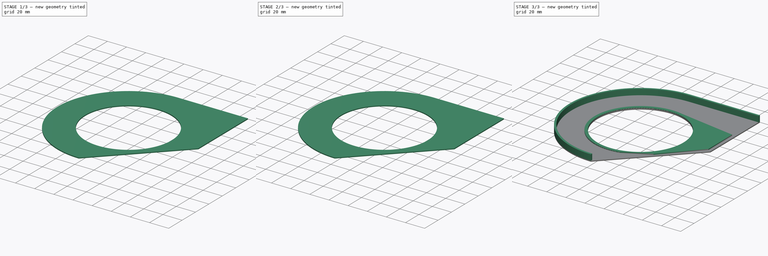
[diagram: build sequence overview — one tinted view per stage of 3, left to right]
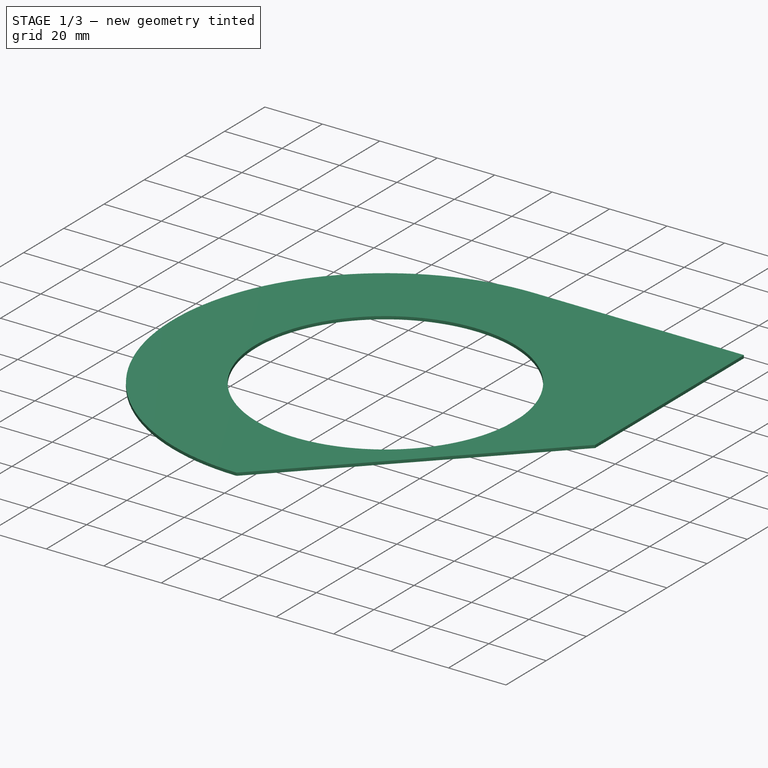
[diagram: stage 1 of 3 — iso view after this stage's code; geometry added in this stage tinted green]
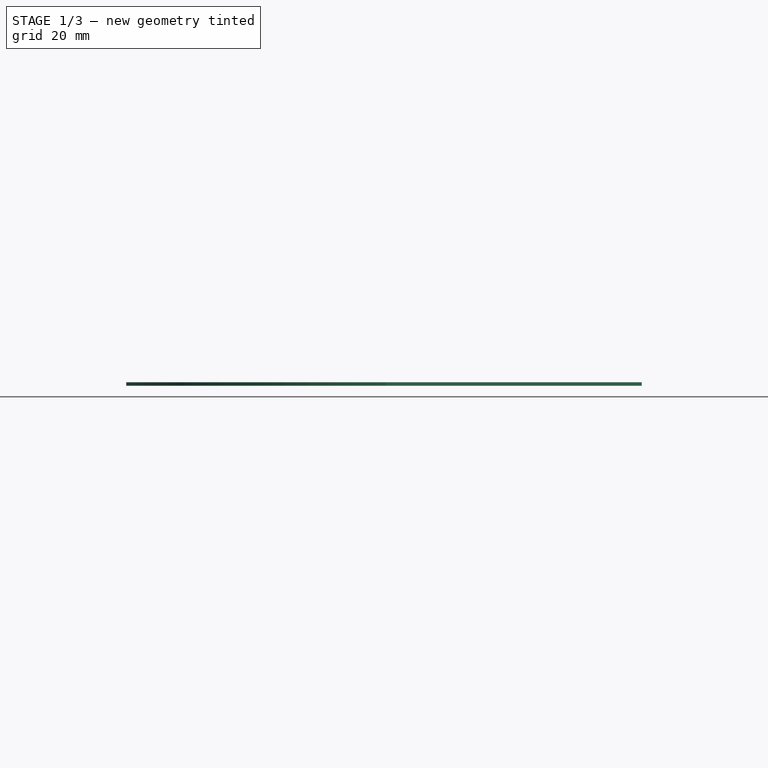
[diagram: stage 1 of 3 — front view after this stage's code; geometry added in this stage tinted green]
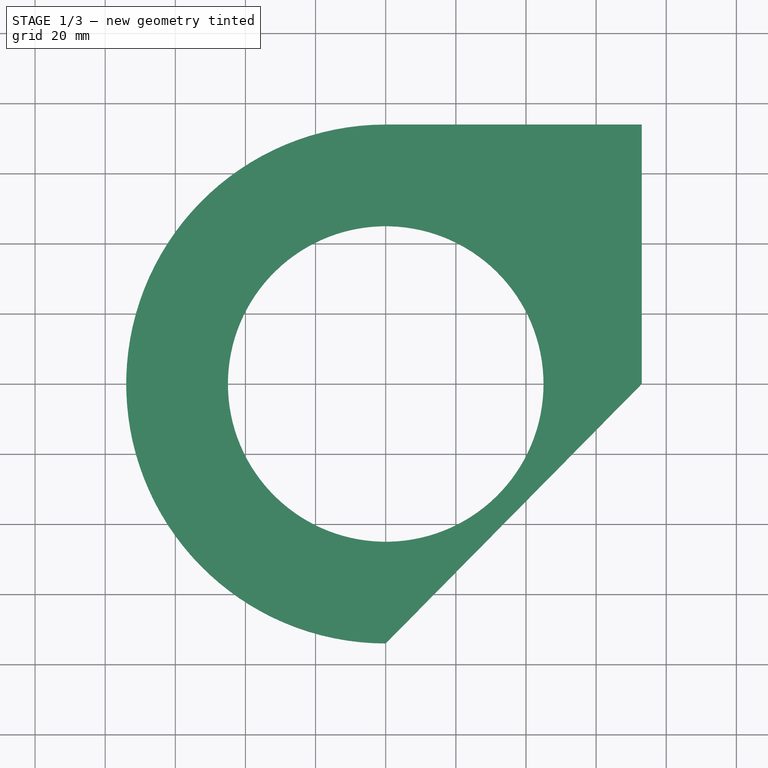
[diagram: stage 1 of 3 — top view after this stage's code; geometry added in this stage tinted green]
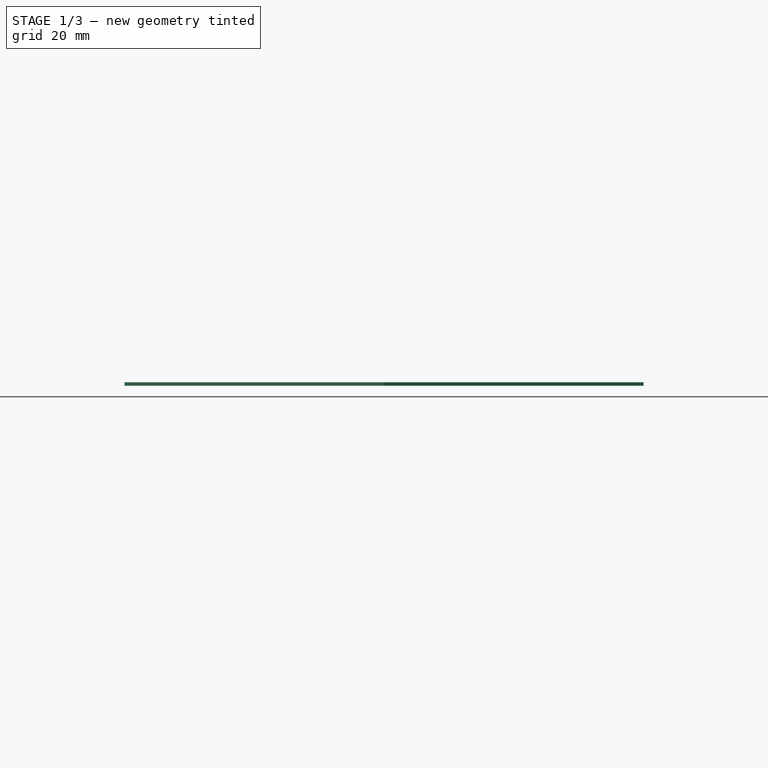
[diagram: stage 1 of 3 — right view after this stage's code; geometry added in this stage tinted green]
FCSTD DOCUMENT  (FreeCAD 0.16R)
Label: chainguard30tV3
License: All rights reserved
LicenseURL: http://en.wikipedia.org/wiki/All_rights_reserved
objects: Sketcher::SketchObject×7, PartDesign::Pad×5, PartDesign::Pocket×2
note: 21 computed .brp shape members not serialized (recipe doc carries the construction recipe); baked Part::Feature solids carry a one-line shape summary decoded from their .brp

FEATURE [Sketcher::SketchObject] Sketch001
  sketch-geometry (5):
    g0: LineSegment StartX=73 StartY=74 StartZ=0 EndX=0 EndY=74 EndZ=0
    g1: LineSegment StartX=73 StartY=0 StartZ=0 EndX=0 EndY=-74 EndZ=0
    g2: ArcOfCircle CenterX=1.64129e-05 CenterY=0 CenterZ=0 NormalX=0 NormalY=0 NormalZ=1 Radius=74 StartAngle=1.5708 EndAngle=4.71239
    g3: Circle CenterX=0 CenterY=0 CenterZ=0 NormalX=0 NormalY=0 NormalZ=1 Radius=45
    g4: LineSegment StartX=73 StartY=74 StartZ=0 EndX=73 EndY=0 EndZ=0
  constraints (15):
    c: Horizontal(g0)
    c: Coincident(g2,g1)
    c: Coincident(g0,g2)
    c: DistanceX(g1,g0) = 0
    c: DistanceY(g1,g0) = 148
    c: Symmetric(g1,g0,g-1)
    c: Radius(g3) = 45
    c: Coincident(g3,g-1)
    c: DistanceX(g0,g0) = 73
    c: Vertical(g4)
    c: DistanceX(g-1,g4) = 73
    c: Radius(g2) = 74
    c: Coincident(g1,g4)
    c: PointOnObject(g1,g-1)
    c: Coincident(g4,g0)
FEATURE [PartDesign::Pad] Pad  label="Faceplate"
  Length = 1
  Length2 = 100
  Reversed = true
  Sketch = -> Sketch001
  Type = 0
FEATURE [Sketcher::SketchObject] Sketch
  Placement = pos=(0,0,-1) rot=(1,0,0;3.14159rad)
  Support = -> Pad [Face7]
  sketch-geometry (5):
    g0: LineSegment [constr] StartX=-4 StartY=2 StartZ=0 EndX=53.3173 EndY=86.9764 EndZ=0
    g1: LineSegment StartX=22.2526 StartY=72.2162 StartZ=0 EndX=64.4703 EndY=72.2162 EndZ=0
    g2: LineSegment StartX=64.4703 StartY=72.2162 StartZ=0 EndX=67.8254 EndY=77.1905 EndZ=0
    g3: LineSegment StartX=67.8254 StartY=77.1905 StartZ=0 EndX=38.8091 EndY=96.7622 EndZ=0
    g4: LineSegment StartX=38.8091 StartY=96.7622 StartZ=0 EndX=22.2526 EndY=72.2162 EndZ=0
  constraints (15):
    c: DistanceY(g-1,g0) = 2
    c: DistanceX(g0,g-1) = 4
    c: Angle(g0) = 0.977384
    c: Distance(g0) = 102.5
    c: Horizontal(g1)
    c: Coincident(g1,g2)
    c: Coincident(g2,g3)
    c: Coincident(g3,g4)
    c: Coincident(g1,g4)
    c: Parallel(g2,g0)
    c: Parallel(g0,g4)
    c: Distance(g2) = 6
    c: Symmetric(g3,g2,g0)
    c: Distance(g3) = 35
    c: PointOnObject(g0,g3)
FEATURE [PartDesign::Pad] Pad003  label="STBoss"
  Length = 31
  Length2 = 1
  Sketch = -> Sketch
  Type = 4
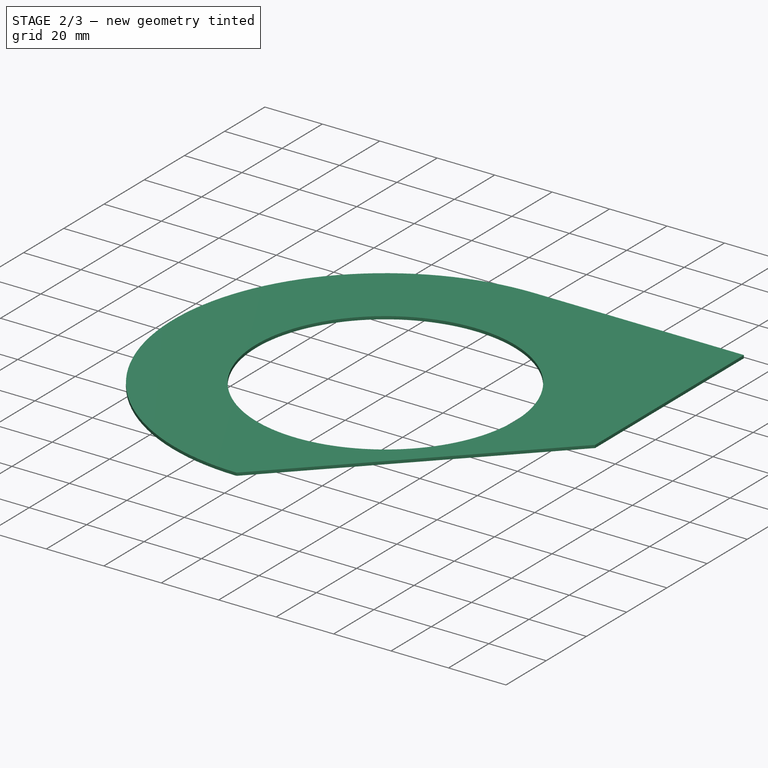
[diagram: stage 2 of 3 — iso view after this stage's code; geometry added in this stage tinted green]
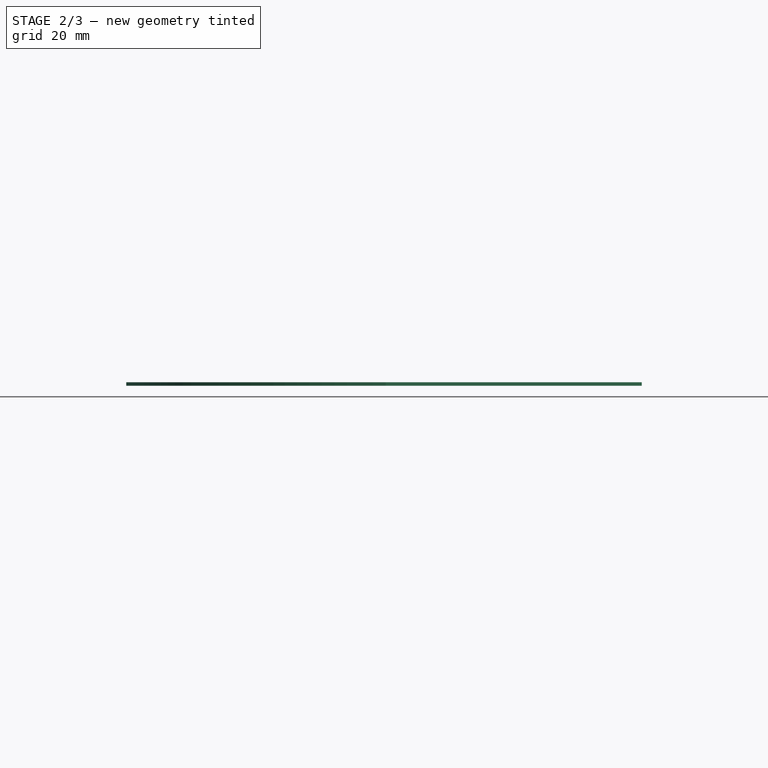
[diagram: stage 2 of 3 — front view after this stage's code; geometry added in this stage tinted green]
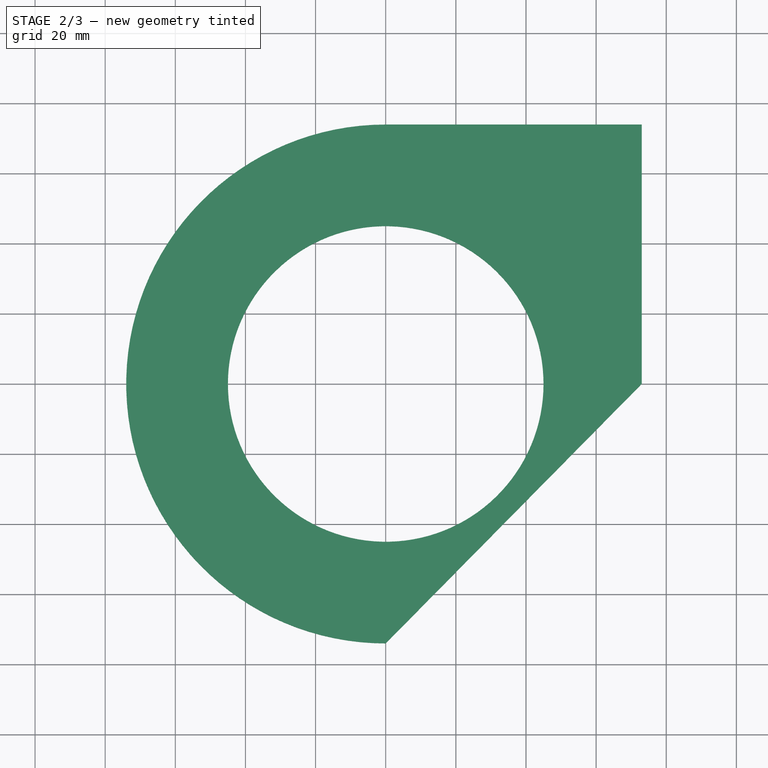
[diagram: stage 2 of 3 — top view after this stage's code; geometry added in this stage tinted green]
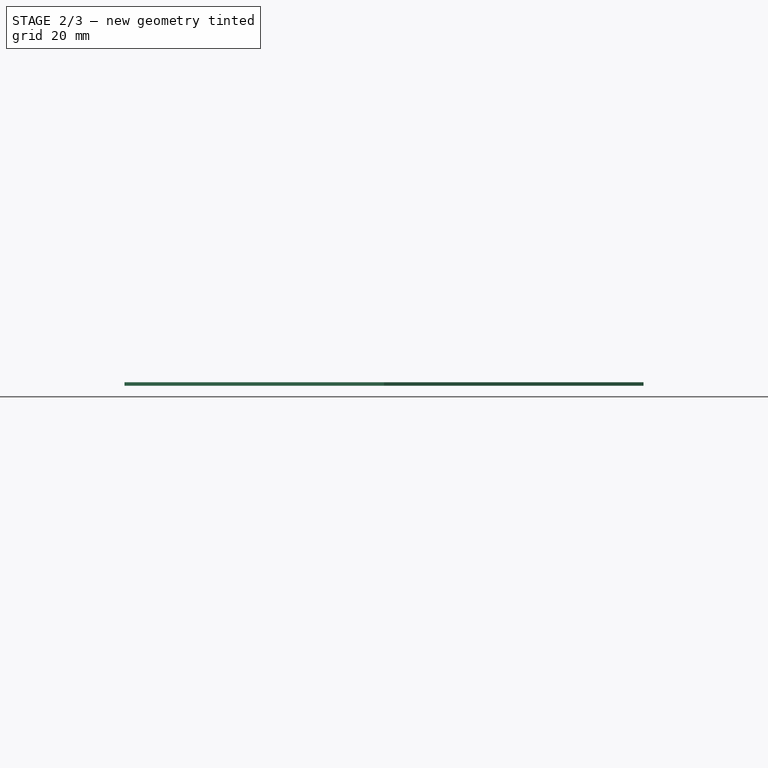
[diagram: stage 2 of 3 — right view after this stage's code; geometry added in this stage tinted green]
FEATURE [Sketcher::SketchObject] Sketch025
  Placement = pos=(73,0,0) rot=(0.57735,0.57735,0.57735;2.0944rad)
  Support = -> Pad003 [Face4]
  sketch-geometry (5):
    g0: LineSegment [constr] StartX=-4 StartY=2 StartZ=0 EndX=-74.2884 EndY=23.4893 EndZ=0
    g1: LineSegment StartX=-69.1719 StartY=40.2247 StartZ=0 EndX=-79.4049 EndY=6.75399 EndZ=0
    g2: LineSegment StartX=-79.4049 StartY=6.75399 StartZ=0 EndX=-73.6671 EndY=4.99976 EndZ=0
    g3: LineSegment StartX=-73.6671 StartY=4.99976 StartZ=0 EndX=-63.4341 EndY=38.4704 EndZ=0
    g4: LineSegment StartX=-63.4341 StartY=38.4704 StartZ=0 EndX=-69.1719 EndY=40.2247 EndZ=0
  constraints (16):
    c: DistanceY(g-1,g0) = 2
    c: DistanceX(g0,g-1) = 4
    c: Angle(g0) = 2.84489
    c: Coincident(g1,g2)
    c: Coincident(g2,g3)
    c: Coincident(g3,g4)
    c: Coincident(g4,g1)
    c: Distance(g4) = 6
    c: Parallel(g2,g0)
    c: Parallel(g0,g4)
    c: Equal(g4,g2)
    c: Perpendicular(g0,g1)
    c: PointOnObject(g0,g1)
    c: Symmetric(g1,g1,g0)
    c: Distance(g0) = 73.5
    c: Distance(g1) = 35
FEATURE [PartDesign::Pad] Pad004
  Length = 31
  Length2 = 1
  Sketch = -> Sketch025
  Type = 4
FEATURE [Sketcher::SketchObject] Sketch026
  ExternalGeometry = -> [Pad004]
  Placement = pos=(-74.5057,22.7787,0) rot=(-0.463605,0.626526,0.626526;4.00981rad)
  Support = -> Pad004 [Face21]
  sketch-geometry (1):
    g0: Circle CenterX=-0.743123 CenterY=31 CenterZ=0 NormalX=0 NormalY=0 NormalZ=1 Radius=11.2
  constraints (2):
    c: Symmetric(g-3,g-4,g0)
    c: Radius(g0) = 11.2
FEATURE [PartDesign::Pocket] Pocket
  Length = 5
  Sketch = -> Sketch026
  Type = 1
FEATURE [Sketcher::SketchObject] Sketch027
  ExternalGeometry = -> [Pocket]
  Placement = pos=(56.9937,84.4966,0) rot=(0.211303,0.691141,0.691141;2.72511rad)
  Support = -> Pocket [Face25]
  sketch-geometry (1):
    g0: Circle CenterX=4.43454 CenterY=31 CenterZ=0 NormalX=0 NormalY=0 NormalZ=1 Radius=11.2
  constraints (2):
    c: Symmetric(g-3,g-4,g0)
    c: Radius(g0) = 11.2
FEATURE [PartDesign::Pocket] Pocket001
  Length = 5
  Sketch = -> Sketch027
  Type = 1
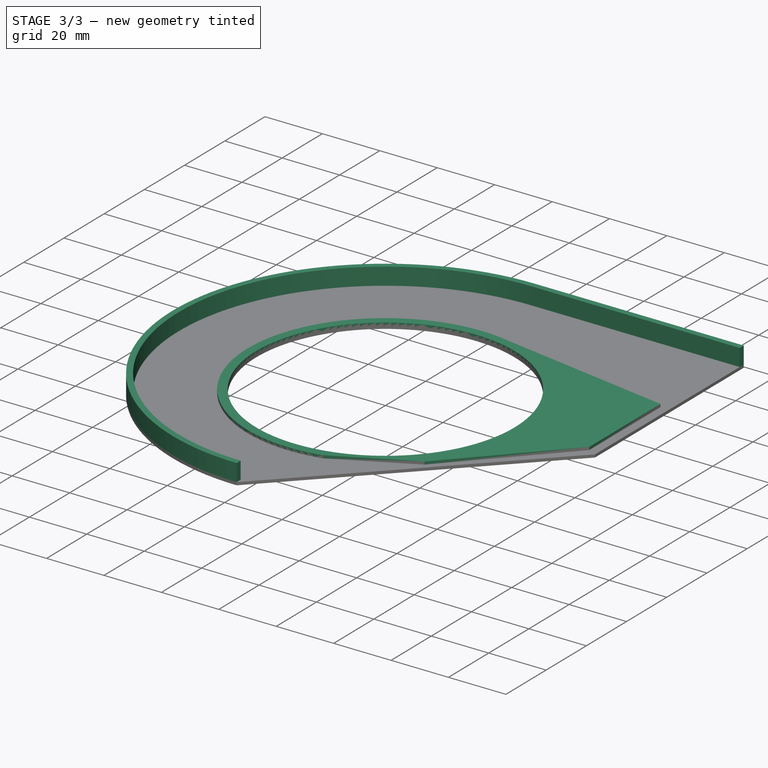
[diagram: stage 3 of 3 — iso view after this stage's code; geometry added in this stage tinted green]
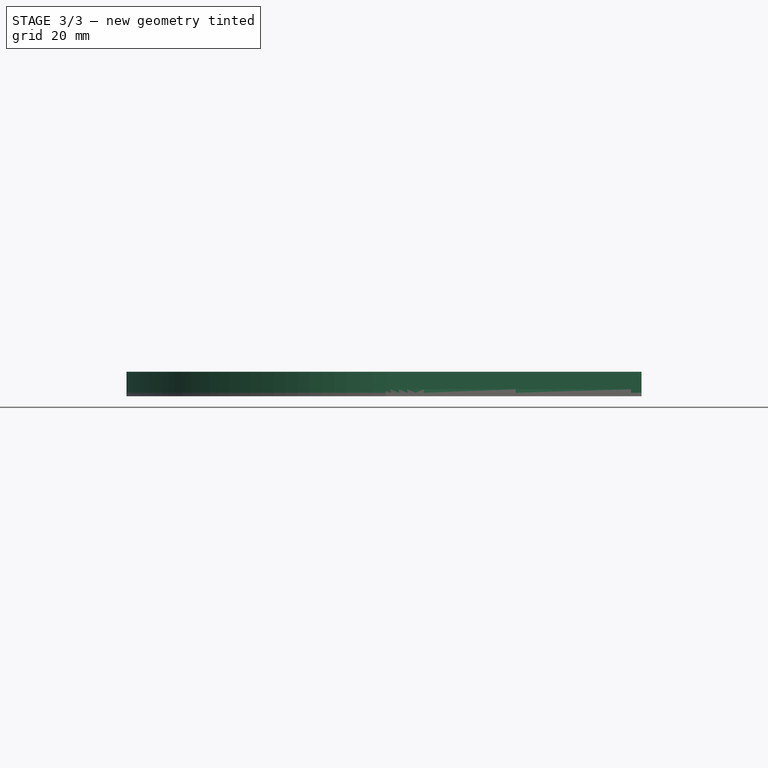
[diagram: stage 3 of 3 — front view after this stage's code; geometry added in this stage tinted green]
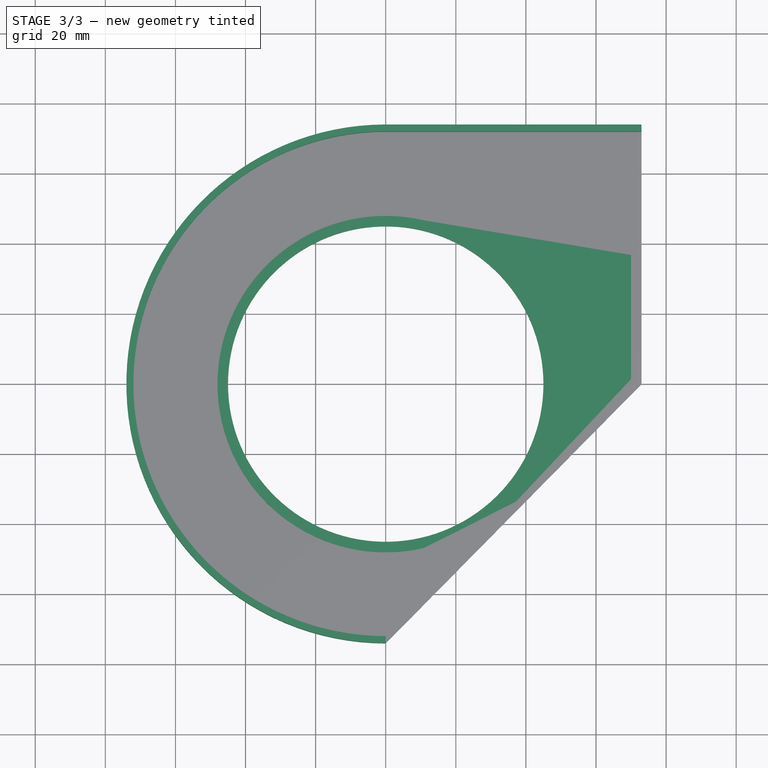
[diagram: stage 3 of 3 — top view after this stage's code; geometry added in this stage tinted green]
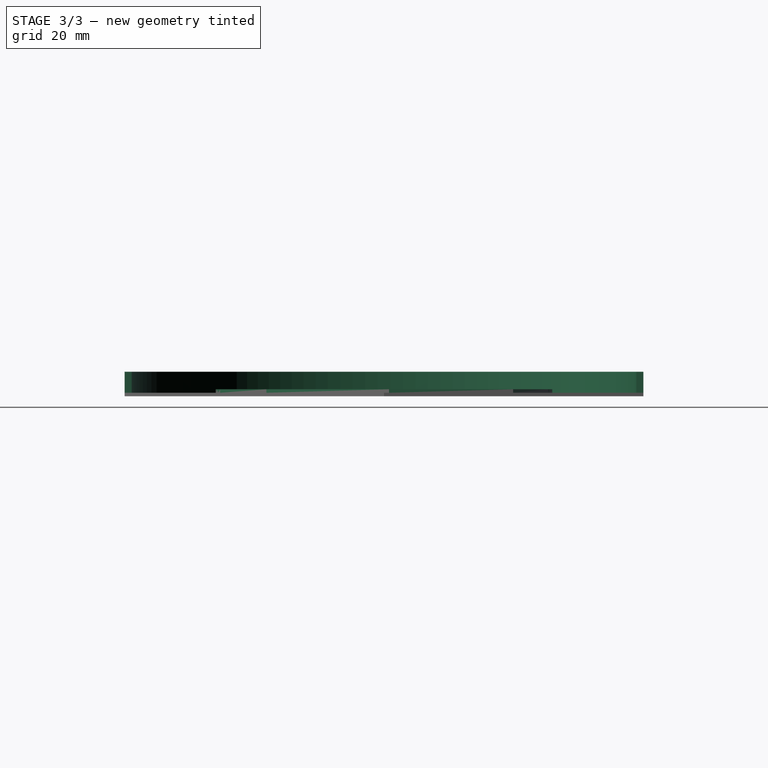
[diagram: stage 3 of 3 — right view after this stage's code; geometry added in this stage tinted green]
FEATURE [Sketcher::SketchObject] Sketch002
  sketch-geometry (6):
    g0: LineSegment StartX=73 StartY=74 StartZ=0 EndX=0 EndY=74 EndZ=0
    g1: ArcOfCircle CenterX=-4.91178e-05 CenterY=0 CenterZ=0 NormalX=0 NormalY=0 NormalZ=1 Radius=74 StartAngle=1.5708 EndAngle=4.71239
    g2: LineSegment StartX=0 StartY=72 StartZ=0 EndX=73 EndY=72 EndZ=0
    g3: LineSegment StartX=73 StartY=74 StartZ=0 EndX=73 EndY=72 EndZ=0
    g4: ArcOfCircle CenterX=8.58465e-07 CenterY=0 CenterZ=0 NormalX=0 NormalY=0 NormalZ=1 Radius=72 StartAngle=1.5708 EndAngle=4.71239
    g5: LineSegment StartX=0 StartY=-74 StartZ=0 EndX=0 EndY=-72 EndZ=0
  constraints (18):
    c: Horizontal(g0)
    c: Coincident(g0,g1)
    c: DistanceX(g1,g0) = 0
    c: DistanceY(g1,g0) = 148
    c: Symmetric(g1,g0,g-1)
    c: Parallel(g0,g2)
    c: DistanceY(g2,g0) = 2
    c: DistanceX(g0,g2) = 0
    c: DistanceX(g4) = 0
    c: DistanceX(g0) = 73
    c: Equal(g2,g0)
    c: Coincident(g3,g2)
    c: Coincident(g3,g0)
    c: Coincident(g4,g2)
    c: Radius(g4) = 72
    c: Radius(g1) = 74
    c: Coincident(g5,g4)
    c: Coincident(g5,g1)
FEATURE [PartDesign::Pad] Pad001  label="Connector"
  Length = 6
  Length2 = 100
  Sketch = -> Sketch002
  Type = 0
FEATURE [Sketcher::SketchObject] Sketch024  label="FaceStiffener"
  sketch-geometry (6):
    g0: ArcOfCircle CenterX=0 CenterY=0 CenterZ=0 NormalX=0 NormalY=0 NormalZ=1 Radius=48 StartAngle=1.34179 EndAngle=4.9414
    g1: Circle CenterX=0 CenterY=0 CenterZ=0 NormalX=0 NormalY=0 NormalZ=1 Radius=45
    g2: LineSegment StartX=10.8966 StartY=46.7468 StartZ=0 EndX=70 EndY=36.8563 EndZ=0
    g3: LineSegment StartX=70 StartY=1.4435 StartZ=0 EndX=37.1106 EndY=-33.5618 EndZ=0
    g4: LineSegment StartX=37.1106 StartY=-33.5618 StartZ=0 EndX=10.8966 EndY=-46.7468 EndZ=0
    g5: LineSegment StartX=70 StartY=36.8563 StartZ=0 EndX=70 EndY=1.4435 EndZ=0
  constraints (17):
    c: Coincident(g0,g-1)
    c: Radius(g0) = 48
    c: Coincident(g1,g-1)
    c: Radius(g1) = 45
    c: Coincident(g3,g4)
    c: Coincident(g0,g2)
    c: DistanceX(g-1,g2) = 70
    c: DistanceY(g-1,g0) = 46.7468
    c: DistanceX(g0) = 10.8966
    c: Coincident(g4,g0)
    c: Coincident(g5,g2)
    c: Coincident(g5,g3)
    c: Vertical(g5)
    c: Distance(g4) = 29.3431
    c: Distance(g3) = 48.0321
    c: Distance(g5) = 35.4128
    c: Distance(g2) = 59.9252
FEATURE [PartDesign::Pad] Pad002  label="FaceStiffener001"
  Length = 1
  Length2 = 100
  Sketch = -> Sketch024
  Type = 0
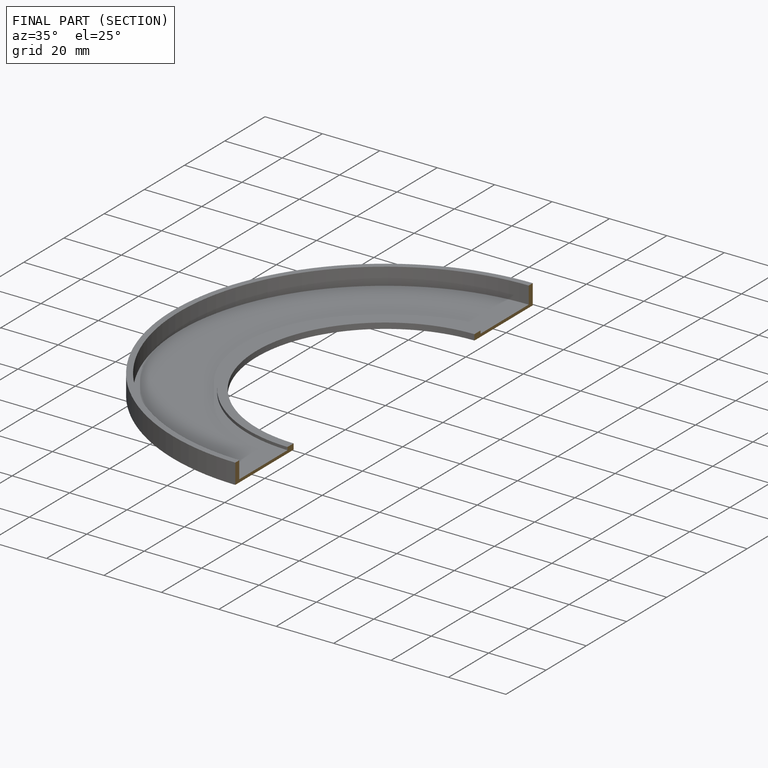
[diagram: finished part — half-section view (interior)]
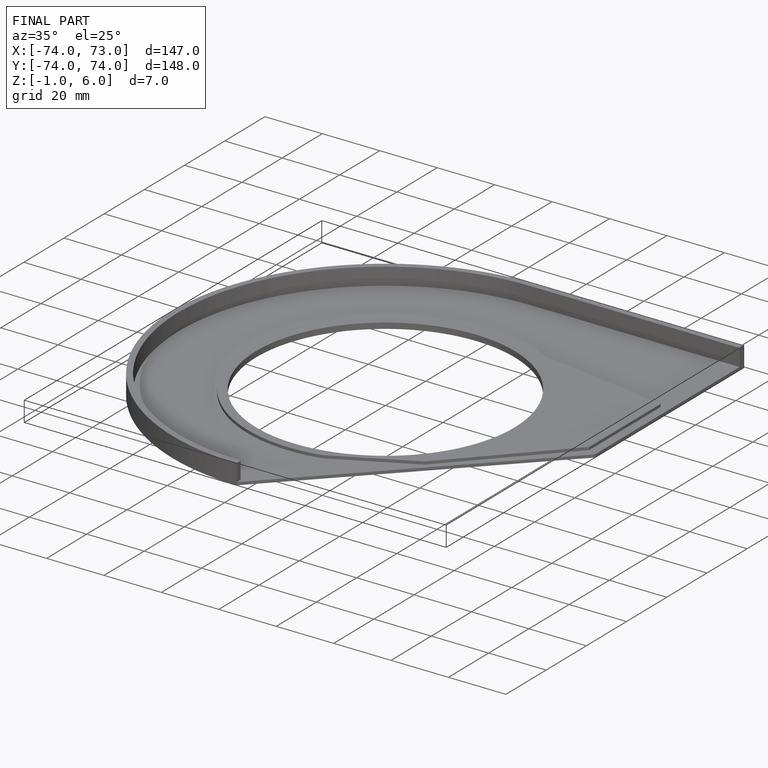
[diagram: finished part — iso view with bounding-box wireframe]
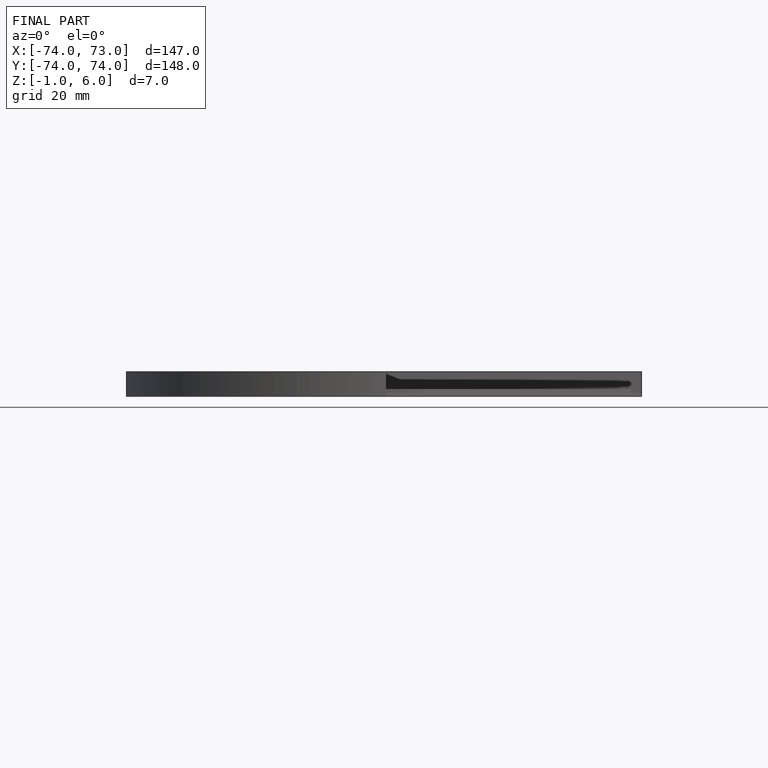
[diagram: finished part — front view with bounding-box wireframe]
